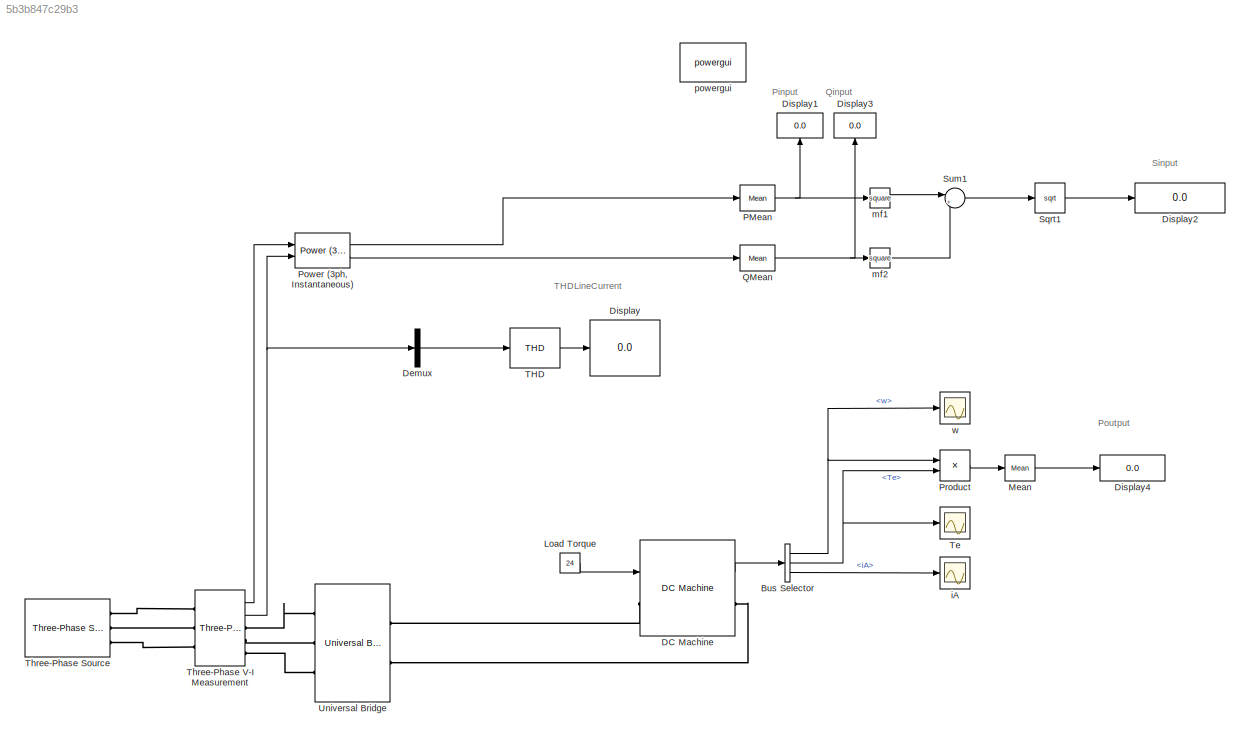
MODEL slx_5b3b847c29b3
KIND model
CONFIG AbsTol = auto
CONFIG EnableMultiTasking = off
CONFIG FixedStep = auto
CONFIG MaxStep = auto
CONFIG MinStep = auto
CONFIG RelTol = 1e-3
CONFIG SampleTimeConstraint = Unconstrained
CONFIG Solver = FixedStepAuto
CONFIG SolverName = FixedStepAuto
CONFIG StartTime = 0.0
CONFIG StopTime = 8
BLOCK [BusSelector] Bus Selector
  OutputAsBus = off
  OutputSignals = w,Te,iA
  Ports = [1, 3]
BLOCK [Reference] DC Machine  REF=powerlib/Machines/DC Machine
  Ports = [1, 1, 0, 0, 0, 1, 1]
  SourceBlock = powerlib/Machines/DC Machine
  SourceProductBaseCode = PS
  SourceProductName = Simscape Power Systems
  SourceType = DC machine
BLOCK [Demux] Demux
  DisplayOption = bar
  Outputs = 1
  Ports = [1, 1]
BLOCK [Display] Display
  Decimation = 1
  Ports = [1]
BLOCK [Display] Display1
  Decimation = 1
  Ports = [1]
BLOCK [Display] Display2
  Decimation = 1
  Ports = [1]
BLOCK [Display] Display3
  Decimation = 1
  Ports = [1]
BLOCK [Display] Display4
  Decimation = 1
  Ports = [1]
BLOCK [Constant] Load Torque
  Value = 24
BLOCK [Reference] Mean  REF=powerlib_meascontrol/Measurements/Mean
  Ports = [1, 1]
  SourceBlock = powerlib_meascontrol/Measurements/Mean
  SourceProductBaseCode = PS
  SourceProductName = Simscape Power Systems
  SourceType = Mean
BLOCK [Reference] PMean  REF=powerlib_meascontrol/Measurements/Mean
  Ports = [1, 1]
  SourceBlock = powerlib_meascontrol/Measurements/Mean
  SourceProductBaseCode = PS
  SourceProductName = Simscape Power Systems
  SourceType = Mean
BLOCK [Reference] Power (3ph, Instantaneous)  REF=powerlib_meascontrol/Measurements/Power
(3ph, Instantaneous)
  Ports = [2, 2]
  SourceBlock = powerlib_meascontrol/Measurements/Power\n(3ph, Instantaneous)
  SourceProductBaseCode = PS
  SourceProductName = Simscape Power Systems
  SourceType = Power (3ph, Instantaneous)
BLOCK [Product] Product
  InputSameDT = off
  OutDataTypeStr = Inherit: Inherit via internal rule
  Ports = [2, 1]
  RndMeth = Floor
  SaturateOnIntegerOverflow = off
BLOCK [Reference] QMean  REF=powerlib_meascontrol/Measurements/Mean
  Ports = [1, 1]
  SourceBlock = powerlib_meascontrol/Measurements/Mean
  SourceProductBaseCode = PS
  SourceProductName = Simscape Power Systems
  SourceType = Mean
BLOCK [Sqrt] Sqrt1
BLOCK [Sum] Sum1
  IconShape = round
  InputSameDT = off
  Inputs = |++
  OutDataTypeStr = Inherit: Inherit via internal rule
  Ports = [2, 1]
  SaturateOnIntegerOverflow = off
BLOCK [Reference] THD  REF=powerlib_meascontrol/Measurements/THD
  Ports = [1, 1]
  SourceBlock = powerlib_meascontrol/Measurements/THD
  SourceProductBaseCode = PS
  SourceProductName = Simscape Power Systems
  SourceType = THD
BLOCK [Scope] Te
  Floating = off
  NumInputPorts = 1
  Ports = [1]
  ScopeSpecificationString = Simulink.scopes.TimeScopeBlockCfg('CurrentConfiguration', extmgr.ConfigurationSet(extmgr.Configuration('Core','General UI',true,'FigureColor',[0 0 0]),extmgr.Configuration('Core','Source UI',true),extmgr.Configuration('Sources','WiredSimulink',true,'DataLoggingVariableName','ScopeData1'),extmgr.Configuration('Visuals','Time Domain',true,'SerializedDisplays',{struct('MinYLimReal','15','MaxYLimReal'...<+1540ch>
BLOCK [Reference] Three-Phase Source  REF=powerlib/Electrical
Sources/Three-Phase Source
  Ports = [0, 0, 0, 0, 0, 0, 3]
  SourceBlock = powerlib/Electrical\nSources/Three-Phase Source
  SourceProductBaseCode = PS
  SourceProductName = Simscape Power Systems
  SourceType = Three-Phase Source
BLOCK [Reference] Three-Phase V-I Measurement  REF=powerlib/Measurements/Three-Phase
V-I Measurement
  Ports = [0, 2, 0, 0, 0, 3, 3]
  SourceBlock = powerlib/Measurements/Three-Phase\nV-I Measurement
  SourceProductBaseCode = PS
  SourceProductName = Simscape Power Systems
  SourceType = Three-Phase VI Measurement
BLOCK [Reference] Universal Bridge  REF=powerlib/Power
Electronics/Universal Bridge
  Ports = [0, 0, 0, 0, 0, 3, 2]
  SourceBlock = powerlib/Power\nElectronics/Universal Bridge
  SourceProductBaseCode = PS
  SourceProductName = Simscape Power Systems
  SourceType = Universal Bridge
BLOCK [Scope] iA
  Floating = off
  NumInputPorts = 1
  Ports = [1]
  ScopeSpecificationString = Simulink.scopes.TimeScopeBlockCfg('CurrentConfiguration', extmgr.ConfigurationSet(extmgr.Configuration('Core','General UI',true,'FigureColor',[0 0 0]),extmgr.Configuration('Core','Source UI',true),extmgr.Configuration('Sources','WiredSimulink',true,'DataLoggingVariableName','ScopeData2'),extmgr.Configuration('Visuals','Time Domain',true,'SerializedDisplays',{struct('MinYLimReal','0','MaxYLimReal',...<+1533ch>
BLOCK [Math] mf1
  Operator = square
  Ports = [1, 1]
BLOCK [Math] mf2
  Operator = square
  Ports = [1, 1]
BLOCK [Reference] powergui  REF=powerlib/powergui
  Ports = []
  Priority = 1
  SourceBlock = powerlib/powergui
  SourceProductBaseCode = PS
  SourceProductName = Simscape Power Systems
  SourceType = PSB option menu block
BLOCK [Scope] w
  Floating = off
  NumInputPorts = 1
  Ports = [1]
  ScopeSpecificationString = Simulink.scopes.TimeScopeBlockCfg('CurrentConfiguration', extmgr.ConfigurationSet(extmgr.Configuration('Core','General UI',true),extmgr.Configuration('Core','Source UI',true),extmgr.Configuration('Sources','WiredSimulink',true),extmgr.Configuration('Visuals','Time Domain',true,'SerializedDisplays',{struct('MinYLimReal','0','MaxYLimReal','200','YLabelReal','','MinYLimMag','205.09093','MaxYLimMag','...<+1355ch>
ANNOTATION (root): Pinput
ANNOTATION (root): Poutput
ANNOTATION (root): Qinput
ANNOTATION (root): Sinput
ANNOTATION (root): THDLineCurrent
NET Bus Selector:1 -> Product:1, w:1
NET Bus Selector:2 -> Product:2, Te:1
LINE Bus Selector:3 -> iA:1
LINE DC Machine:1 -> Bus Selector:1
LINE Demux:1 -> THD:1
LINE Load Torque:1 -> DC Machine:1
LINE Mean:1 -> Display4:1
NET PMean:1 -> Display1:1, mf1:1
LINE Power (3ph, Instantaneous):1 -> PMean:1
LINE Power (3ph, Instantaneous):2 -> QMean:1
LINE Product:1 -> Mean:1
NET QMean:1 -> Display3:1, mf2:1
LINE Sqrt1:1 -> Display2:1
LINE Sum1:1 -> Sqrt1:1
LINE THD:1 -> Display:1
LINE Three-Phase V-I Measurement:1 -> Power (3ph, Instantaneous):1
NET Three-Phase V-I Measurement:2 -> Demux:1, Power (3ph, Instantaneous):2
LINE mf1:1 -> Sum1:1
LINE mf2:1 -> Sum1:2
PLINE DC Machine:LConn1 -- Universal Bridge:RConn1
PLINE DC Machine:RConn1 -- Universal Bridge:RConn2
PLINE Three-Phase Source:RConn1 -- Three-Phase V-I Measurement:LConn1
PLINE Three-Phase Source:RConn2 -- Three-Phase V-I Measurement:LConn2
PLINE Three-Phase Source:RConn3 -- Three-Phase V-I Measurement:LConn3
PLINE Three-Phase V-I Measurement:RConn1 -- Universal Bridge:LConn1
PLINE Three-Phase V-I Measurement:RConn2 -- Universal Bridge:LConn2
PLINE Three-Phase V-I Measurement:RConn3 -- Universal Bridge:LConn3
note: NET lines group one-source signal fan-out (src -> all destinations, sorted); 1:1 wires keep LINE
